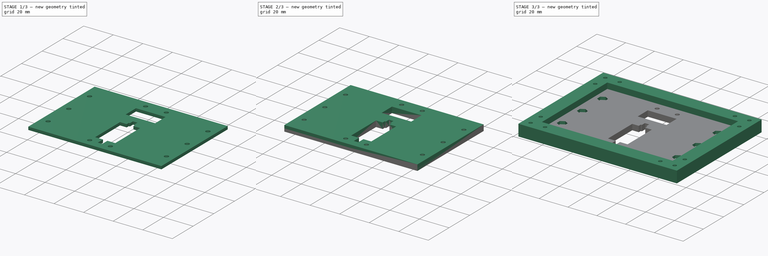
[diagram: build sequence overview — one tinted view per stage of 3, left to right]
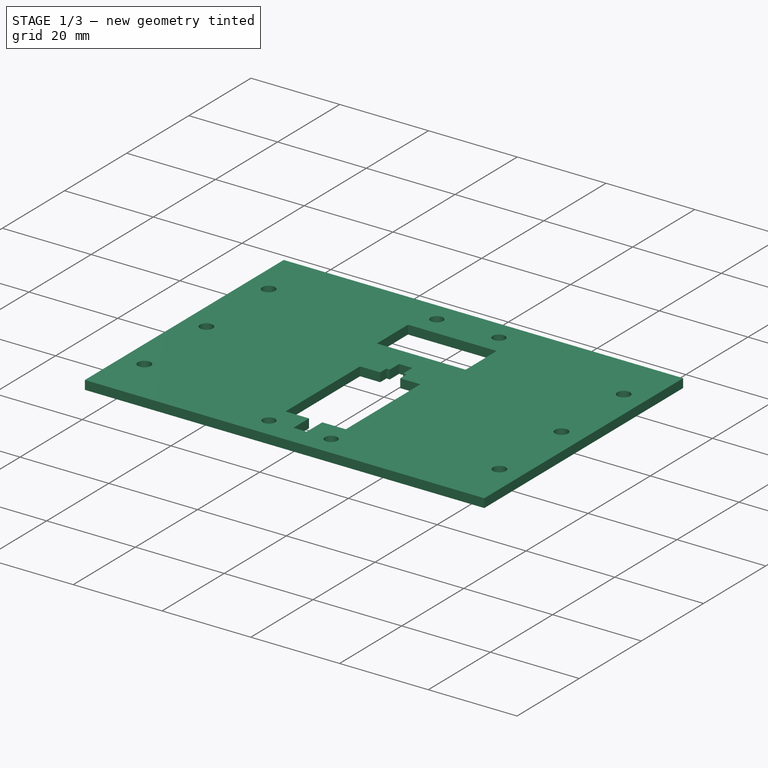
[diagram: stage 1 of 3 — iso view after this stage's code; geometry added in this stage tinted green]
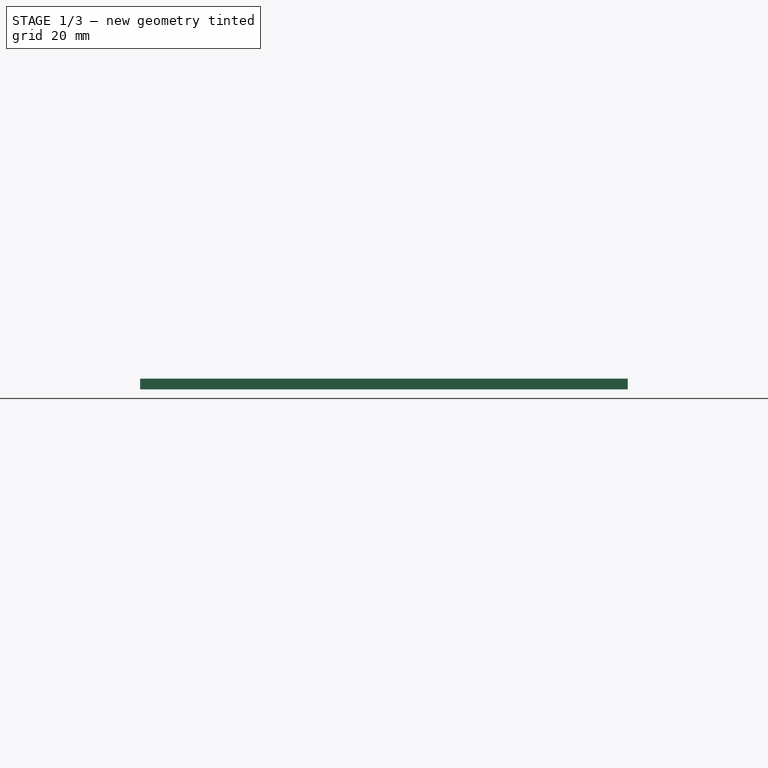
[diagram: stage 1 of 3 — front view after this stage's code; geometry added in this stage tinted green]
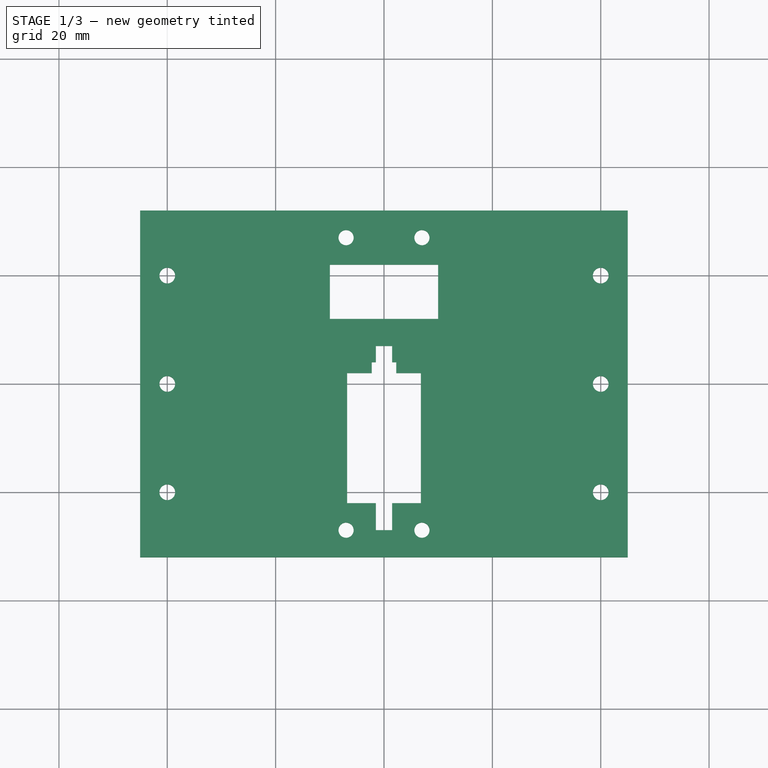
[diagram: stage 1 of 3 — top view after this stage's code; geometry added in this stage tinted green]
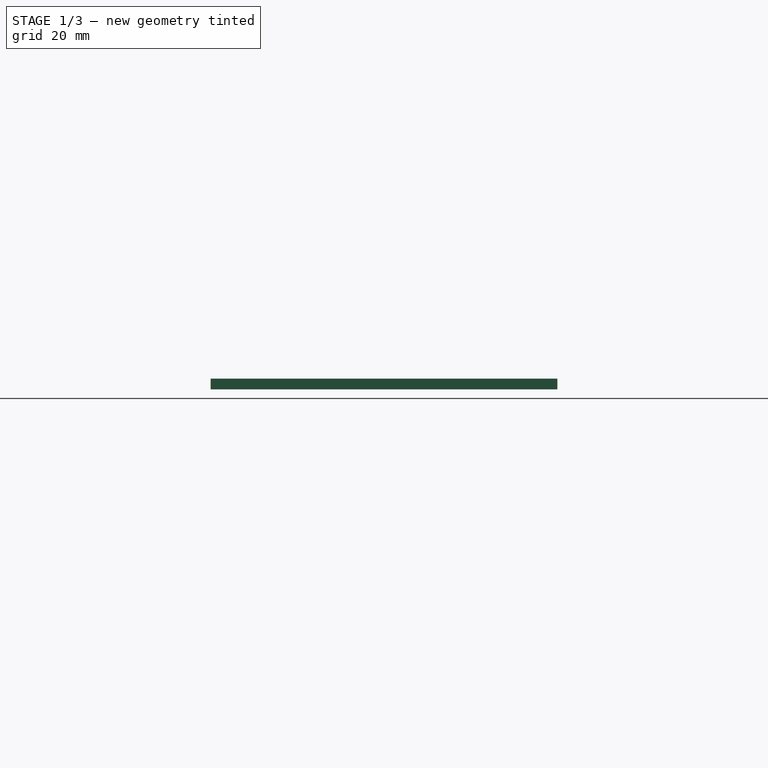
[diagram: stage 1 of 3 — right view after this stage's code; geometry added in this stage tinted green]
FCSTD DOCUMENT  (FreeCAD 0.21R33771 (Git))
Label: attachment_mounting_plate
License: All rights reserved
LicenseURL: http://en.wikipedia.org/wiki/All_rights_reserved
objects: Sketcher::SketchObject×7, PartDesign::Pad×3, PartDesign::Pocket×3, PartDesign::Plane×2, PartDesign::Body×2, App::Part×2, Spreadsheet::Sheet×1, PartDesign::Hole×1, App::DocumentObjectGroupPython×1, PartDesign::Chamfer×1
note: 27 computed .brp shape members not serialized (recipe doc carries the construction recipe); baked Part::Feature solids carry a one-line shape summary decoded from their .brp

FEATURE [Sketcher::SketchObject] Sketch003
  FullyConstrained = true
  MapMode = 5
  Support = -> [XY_Plane004]
  expr: Constraints[20] = Spreadsheet.servo_depth
  expr: Constraints[21] = Spreadsheet.servo_width
  expr: Constraints[23] = Spreadsheet.cable_port_width
  expr: Constraints[25] = Spreadsheet.cable_to_servo_length
  expr: Constraints[37] = Spreadsheet.side_bolt_to_centre
  expr: Constraints[38] = Spreadsheet.side_bolt_distance
  expr: Constraints[39] = Spreadsheet.bolt_diameter
  expr: Constraints[46] = Spreadsheet.cover_plate_hole_v_clearance
  expr: Constraints[47] = Spreadsheet.cover_plate_hole_width
  expr: Constraints[48] = Spreadsheet.cover_plate_hole_v_clearance
  expr: Constraints[49] = Spreadsheet.border_clearance
  expr: Constraints[50] = Spreadsheet.border_clearance
  expr: Constraints[52] = Spreadsheet.cable_port_height
  sketch-geometry (22):
    g0: LineSegment StartX=-45 StartY=32 StartZ=0 EndX=45 EndY=32 EndZ=0
    g1: LineSegment StartX=45 StartY=32 StartZ=0 EndX=45 EndY=-32 EndZ=0
    g2: LineSegment StartX=45 StartY=-32 StartZ=0 EndX=-45 EndY=-32 EndZ=0
    g3: LineSegment StartX=-45 StartY=-32 StartZ=0 EndX=-45 EndY=32 EndZ=0
    g4: LineSegment StartX=-10 StartY=22 StartZ=0 EndX=10 EndY=22 EndZ=0
    g5: LineSegment StartX=10 StartY=22 StartZ=0 EndX=10 EndY=12 EndZ=0
    g6: LineSegment StartX=10 StartY=12 StartZ=0 EndX=-10 EndY=12 EndZ=0
    g7: LineSegment StartX=-10 StartY=12 StartZ=0 EndX=-10 EndY=22 EndZ=0
    g8: LineSegment StartX=-6.8 StartY=2 StartZ=0 EndX=6.8 EndY=2 EndZ=0
    g9: LineSegment StartX=6.8 StartY=2 StartZ=0 EndX=6.8 EndY=-22 EndZ=0
    g10: LineSegment StartX=-6.8 StartY=-22 StartZ=0 EndX=-6.8 EndY=2 EndZ=0
    g11: Circle CenterX=-40 CenterY=20 CenterZ=0 NormalX=0 NormalY=0 NormalZ=1 AngleXU=0 Radius=1.4
    g12: Circle CenterX=-40 CenterY=0 CenterZ=0 NormalX=0 NormalY=0 NormalZ=1 AngleXU=0 Radius=1.4
    g13: Circle CenterX=-40 CenterY=-20 CenterZ=0 NormalX=0 NormalY=0 NormalZ=1 AngleXU=0 Radius=1.4
    g14: Circle CenterX=40 CenterY=20 CenterZ=0 NormalX=0 NormalY=0 NormalZ=1 AngleXU=0 Radius=1.4
    g15: Circle CenterX=40 CenterY=0 CenterZ=0 NormalX=0 NormalY=0 NormalZ=1 AngleXU=0 Radius=1.4
    g16: Circle CenterX=40 CenterY=-20 CenterZ=0 NormalX=0 NormalY=0 NormalZ=1 AngleXU=0 Radius=1.4
    g17: Circle CenterX=-7 CenterY=27 CenterZ=0 NormalX=0 NormalY=0 NormalZ=1 AngleXU=0 Radius=1.4
    g18: Circle CenterX=7 CenterY=27 CenterZ=0 NormalX=0 NormalY=0 NormalZ=1 AngleXU=0 Radius=1.4
    g19: Circle CenterX=7 CenterY=-27 CenterZ=0 NormalX=0 NormalY=0 NormalZ=1 AngleXU=0 Radius=1.4
    g20: Circle CenterX=-7 CenterY=-27 CenterZ=0 NormalX=0 NormalY=0 NormalZ=1 AngleXU=0 Radius=1.4
    g21: LineSegment StartX=6.8 StartY=-22 StartZ=0 EndX=-6.8 EndY=-22 EndZ=0
  constraints (56):
    c: Coincident(g0,g1)
    c: Coincident(g1,g2)
    c: Coincident(g2,g3)
    c: Coincident(g3,g0)
    c: Horizontal(g0)
    c: Horizontal(g2)
    c: Vertical(g1)
    c: Vertical(g3)
    c: Symmetric(g0,g1,g-1)
    c: Coincident(g4,g5)
    c: Coincident(g5,g6)
    c: Coincident(g6,g7)
    c: Coincident(g7,g4)
    c: Horizontal(g6)
    c: Vertical(g5)
    c: Vertical(g7)
    c: Coincident(g21,g10)
    c: Coincident(g10,g8)
    c: Vertical(g9)
    c: Vertical(g10)
    c: DistanceY(g10,g10) = 24
    c: DistanceX(g8,g9) = 13.6
    c: Symmetric(g8,g9,g-2)
    c: DistanceX(g4,g4) = 20
    c: Symmetric(g4,g4,g-2)
    c: DistanceY(g8,g6) = 10
    c: PointOnObject(g15,g-1)
    c: Symmetric(g12,g15,g-2)
    c: Equal(g14,g15)
    c: Equal(g15,g16)
    c: Equal(g16,g13)
    c: Equal(g13,g12)
    c: Equal(g12,g11)
    c: Symmetric(g11,g14,g-2)
    c: Symmetric(g16,g13,g-2)
    c: Symmetric(g11,g13,g-1)
    c: Vertical(g12,g11)
    c: DistanceX(g-1,g15) = 40
    c: DistanceY(g12,g11) = 20
    c: Diameter(g14) = 2.8
    c: Equal(g13,g20)
    c: Equal(g20,g19)
    c: Equal(g19,g18)
    c: Equal(g18,g17)
    c: Symmetric(g17,g18,g-2)
    c: Symmetric(g19,g20,g-2)
    c: DistanceY(g20,g21) = 5
    c: DistanceX(g17,g18) = 14
    c: DistanceY(g4,g17) = 5
    c: DistanceX(g2,g13) = 5
    c: DistanceY(g2,g20) = 5
    c: Symmetric(g20,g17,g-1)
    c: DistanceY(g7,g7) = 10
    c: Coincident(g8,g9)
    c: Coincident(g21,g9)
    c: Horizontal(g21)
FEATURE [PartDesign::Pad] Pad001
  Direction = (0,0,1)
  Length = 2
  Length2 = 10
  Profile = -> Sketch003
  ReferenceAxis = -> Sketch003 [N_Axis]
  Type = 0
  expr: Length = Spreadsheet.plate_thickness
FEATURE [PartDesign::Plane] DatumPlane001
  Length = 105.179
  MapMode = 5
  Placement = pos=(0,0,2) rot=(0,0,1;0rad)
  ResizeMode = 0
  Support = -> [Pad001]
  Width = 79.1789
FEATURE [Sketcher::SketchObject] Sketch004
  FullyConstrained = false
  MapMode = 5
  Placement = pos=(0,0,2) rot=(0,0,1;0rad)
  Support = -> [DatumPlane001]
  sketch-geometry (6):
    g0: Circle CenterX=40 CenterY=20 CenterZ=0 NormalX=0 NormalY=0 NormalZ=1 AngleXU=0 Radius=1.4
    g1: Circle CenterX=40 CenterY=-20 CenterZ=0 NormalX=0 NormalY=0 NormalZ=1 AngleXU=0 Radius=1.4
    g2: Circle CenterX=-40 CenterY=0 CenterZ=0 NormalX=0 NormalY=0 NormalZ=1 AngleXU=0 Radius=1.4
    g3: Circle CenterX=40 CenterY=0 CenterZ=0 NormalX=0 NormalY=0 NormalZ=1 AngleXU=0 Radius=1.4
    g4: Circle CenterX=-40 CenterY=20 CenterZ=0 NormalX=0 NormalY=0 NormalZ=1 AngleXU=0 Radius=1.4
    g5: Circle CenterX=-40 CenterY=-20 CenterZ=0 NormalX=0 NormalY=0 NormalZ=1 AngleXU=0 Radius=1.4
FEATURE [PartDesign::Hole] Hole
  BaseFeature = -> Pad001
  CustomThreadClearance = 0
  Depth = 25
  DepthType = 0
  Diameter = 2.9
  DrillForDepth = false
  DrillPoint = 1
  DrillPointAngle = 118
  HoleCutCountersinkAngle = 90
  HoleCutCustomValues = false
  HoleCutDepth = 0
  HoleCutDiameter = 6.1
  HoleCutType = 0
  ModelThread = false
  Profile = -> Sketch004
  Tapered = false
  TaperedAngle = 90
  ThreadClass = 0
  ThreadDepth = 25
  ThreadDepthType = 0
  ThreadDirection = 0
  ThreadFit = 0
  ThreadSize = 8
  ThreadType = 1
  Threaded = false
  UseCustomThreadClearance = false
FEATURE [PartDesign::Body] Body  label="MountingPlateBody"
  Group = -> [Sketch,Pad,DatumPlane,Sketch002,Pocket,Sketch005,Pad002,Sketch006,Pocket001]
  Origin = -> Origin001
  Tip = -> Pocket001
FEATURE [App::Part] Part  label="MountingPlatePart"
  Group = -> [Body]
  Origin = -> Origin
FEATURE [Sketcher::SketchObject] Sketch007
  ExternalGeometry = -> [Hole]
  FullyConstrained = true
  MapMode = 5
  Placement = pos=(0,0,2) rot=(0,0,1;0rad)
  Support = -> [Hole]
  expr: Constraints[26] = Spreadsheet.servo_motor_cable_width
  expr: Constraints[27] = Spreadsheet.servo_motor_cable_thickness
  expr: Constraints[30] = Spreadsheet.servo_tab_width
  expr: Constraints[32] = Spreadsheet.servo_tab_depth
  sketch-geometry (13):
    g0: LineSegment StartX=-6.8 StartY=-10 StartZ=0 EndX=6.8 EndY=-10 EndZ=0
    g1: LineSegment StartX=1.5 StartY=4 StartZ=0 EndX=1.5 EndY=7 EndZ=0
    g2: LineSegment StartX=1.5 StartY=7 StartZ=0 EndX=-1.5 EndY=7 EndZ=0
    g3: LineSegment StartX=-1.5 StartY=7 StartZ=0 EndX=-1.5 EndY=4 EndZ=0
    g4: LineSegment StartX=-1.5 StartY=-22 StartZ=0 EndX=1.5 EndY=-22 EndZ=0
    g5: LineSegment StartX=1.5 StartY=-22 StartZ=0 EndX=1.5 EndY=-27 EndZ=0
    g6: LineSegment StartX=1.5 StartY=-27 StartZ=0 EndX=-1.5 EndY=-27 EndZ=0
    g7: LineSegment StartX=-1.5 StartY=-27 StartZ=0 EndX=-1.5 EndY=-22 EndZ=0
    g8: LineSegment StartX=2.25 StartY=2 StartZ=0 EndX=2.25 EndY=4 EndZ=0
    g9: LineSegment StartX=2.25 StartY=4 StartZ=0 EndX=1.5 EndY=4 EndZ=0
    g10: LineSegment StartX=-2.25 StartY=4 StartZ=0 EndX=-2.25 EndY=2 EndZ=0
    g11: LineSegment StartX=-1.5 StartY=4 StartZ=0 EndX=-2.25 EndY=4 EndZ=0
    g12: LineSegment StartX=-2.25 StartY=2 StartZ=0 EndX=2.25 EndY=2 EndZ=0
  constraints (34):
    c: PointOnObject(g0,g-3)
    c: Symmetric(g0,g0,g-2)
    c: Symmetric(g-5,g-6,g0)
    c: Coincident(g1,g2)
    c: Coincident(g2,g3)
    c: Vertical(g1)
    c: Coincident(g4,g5)
    c: Coincident(g5,g6)
    c: Coincident(g6,g7)
    c: Coincident(g7,g4)
    c: Horizontal(g4)
    c: Vertical(g5)
    c: Vertical(g7)
    c: PointOnObject(g4,g-5)
    c: Coincident(g8,g9)
    c: Coincident(g11,g10)
    c: Horizontal(g9)
    c: Vertical(g8)
    c: Vertical(g10)
    c: PointOnObject(g8,g-6)
    c: Symmetric(g1,g2,g-2)
    c: Coincident(g3,g11)
    c: Coincident(g1,g9)
    c: Coincident(g12,g10)
    c: Coincident(g12,g8)
    c: Horizontal(g12)
    c: DistanceX(g12,g12) = 4.5
    c: DistanceY(g8,g8) = 2
    c: Symmetric(g3,g1,g-2)
    c: Symmetric(g10,g8,g-2)
    c: DistanceX(g2,g2) = 3
    c: Symmetric(g6,g2,g0)
    c: DistanceY(g8,g1) = 5
    c: Symmetric(g5,g6,g-2)
FEATURE [PartDesign::Pocket] Pocket002
  BaseFeature = -> Hole
  Direction = (0,0,-1)
  Length = 5
  Length2 = 5
  Profile = -> Sketch007
  ReferenceAxis = -> Sketch007 [N_Axis]
  Type = 1
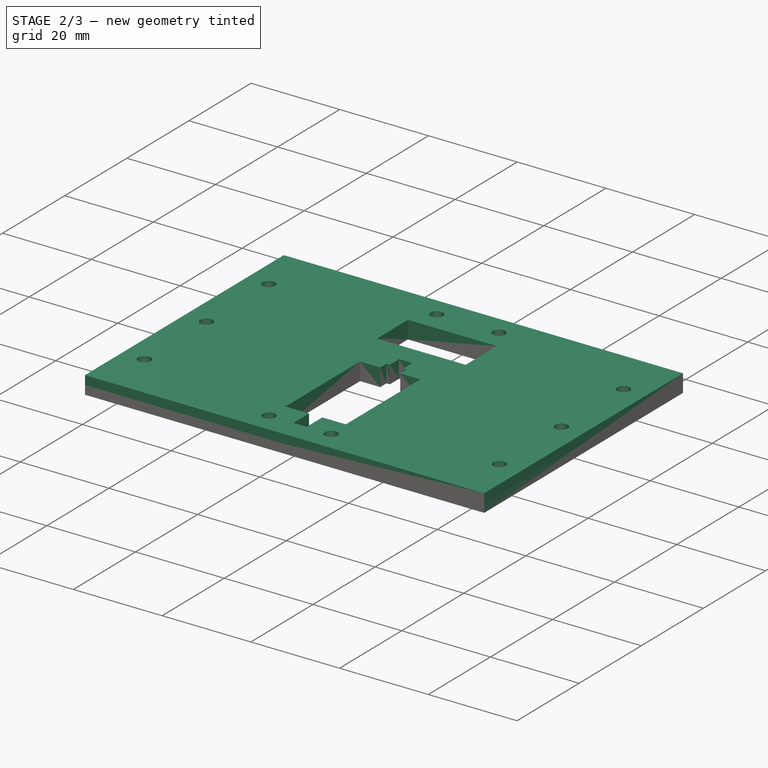
[diagram: stage 2 of 3 — iso view after this stage's code; geometry added in this stage tinted green]
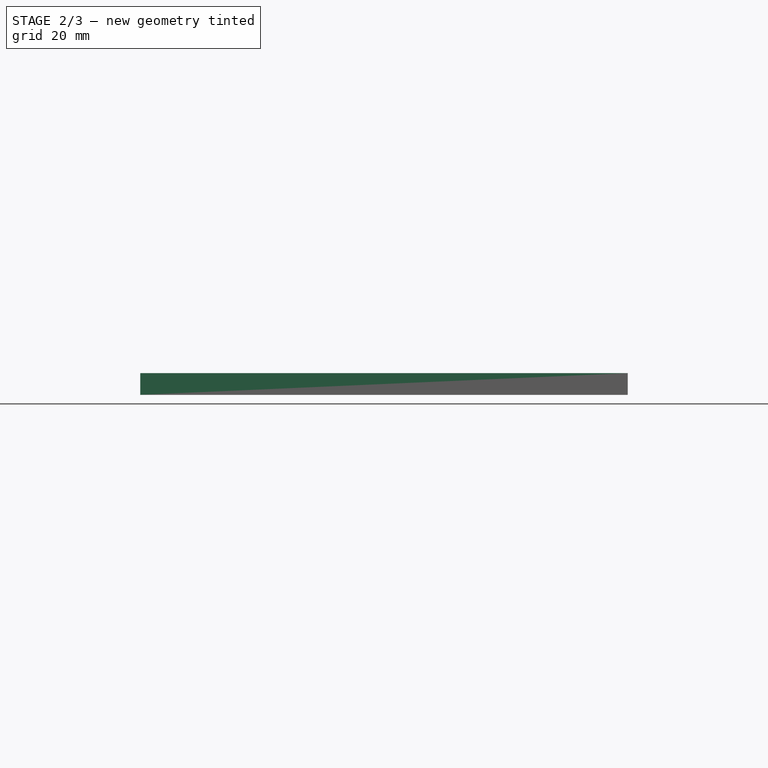
[diagram: stage 2 of 3 — front view after this stage's code; geometry added in this stage tinted green]
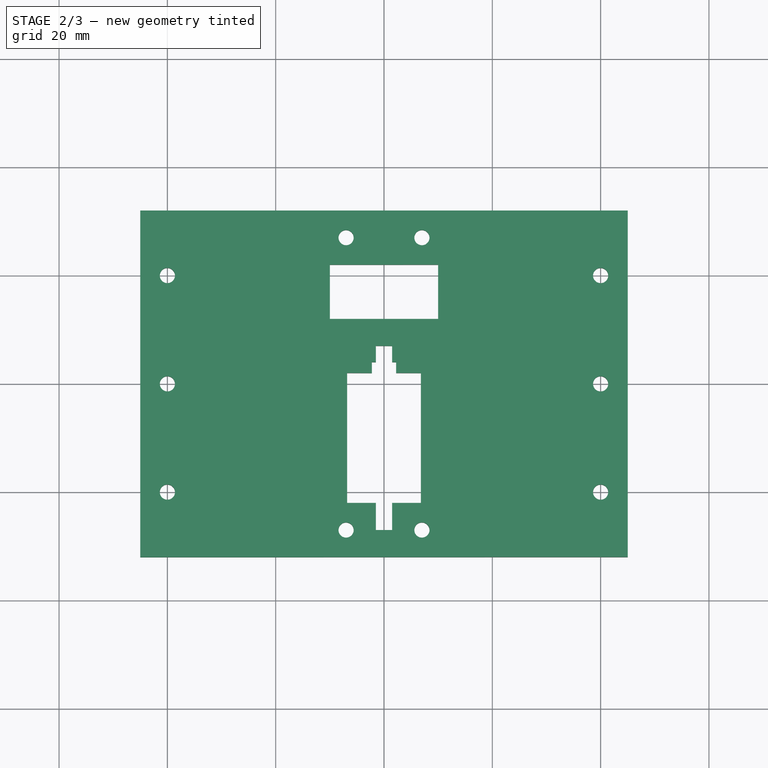
[diagram: stage 2 of 3 — top view after this stage's code; geometry added in this stage tinted green]
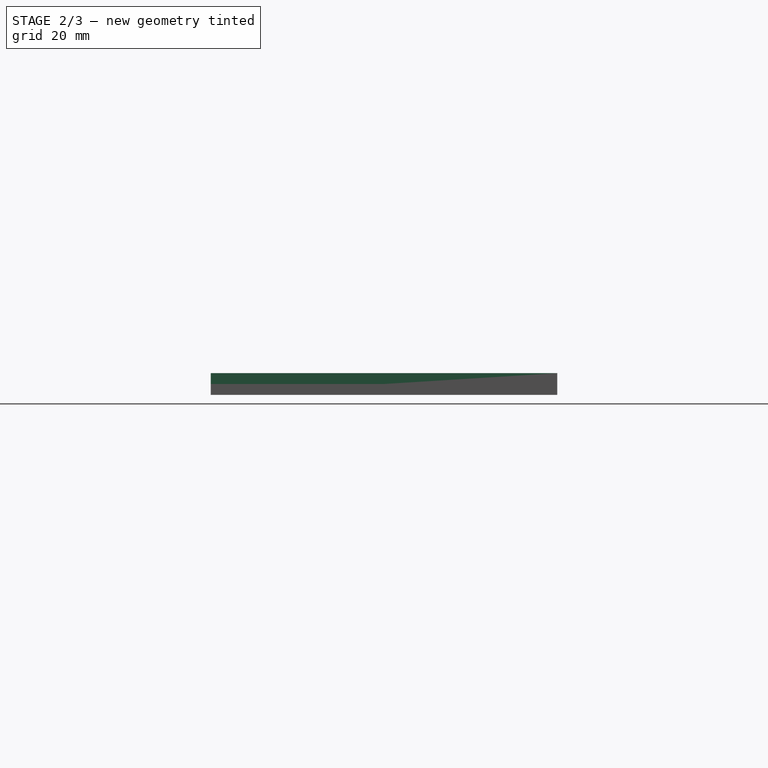
[diagram: stage 2 of 3 — right view after this stage's code; geometry added in this stage tinted green]
FEATURE [Spreadsheet::Sheet] Spreadsheet
  cells = A1='Dimensions; D1='Printer Tolerances; G1='Servo Motor; H1='SG90; J1='Cover Plate Holes; M1='M2.5 Nut Thickness; P1='Mounting Tabs; A2='bolt_diameter; B2(bolt_diameter)==2.8 mm; D2='printer_horizontal; E2(printer_horizontal)==0.4 mm; G2='servo_depth; H2(servo_depth)==24 mm; J2='cover_plate_hole_width; K2(cover_plate_hole_width)==14 mm; M2='m25_nut_thickness; N2(m25_nut_thickness)==2 mm; P2='tab_width; Q2(tab_width)==10 mm; A3='rpi_camera_width; B3(rpi_camera_width)==16 mm; D3='printer_vertical; E3(printer_vertical)==0.1 mm; G3='servo_width; H3(servo_width)==13.6 mm; J3='cover_plate_hole_v_clearance; K3(cover_plate_hole_v_clearance)==5 mm; M3='m25_nut_width; N3(m25_nut_width)==5.4 mm; P3='tab_hole_size; Q3(tab_hole_size)==2.5 mm; A4='cable_port_width; B4(cable_port_width)==20 mm; G4='servo_tab_depth; H4(servo_tab_depth)==5 mm; M4='m25_hole_depth; N4(m25_hole_depth)==10 mm; P4='tab_hole_dist; Q4(tab_hole_dist)==10 mm; A5='cable_port_height; B5(cable_port_height)==10 mm; G5='servo_motor_cable_width; H5(servo_motor_cable_width)==4.5 mm; P5='tab_thickness; Q5(tab_thickness)==mounting_plate_thickness + plate_thickness * 2; A6='side_bolt_to_centre; B6(side_bolt_to_centre)==40 mm; G6='servo_tab_width; H6(servo_tab_width)==3 mm; A7='side_bolt_distance; B7(side_bolt_distance)==20 mm; G7='cable_to_servo_length; H7(cable_to_servo_length)==10 mm; A8='plate_thickness; B8(plate_thickness)==2 mm; G8='servo_motor_cable_thickness; H8(servo_motor_cable_thickness)==2 mm; A9='border_clearance; B9(border_clearance)==5 mm; G9='servo_threaded_size; H9(servo_threaded_size)==1.8 mm; A10='mounting_plate_thickness; B10(mounting_plate_thickness)==plate_thickness + m25_nut_thickness; G10='servo_hole_distance; H10(servo_hole_distance)==29 mm; A14='Big Ole Yellow Dimensions; D14='Derived; A15='length_between_hole_groups; B15(length_between_hole_groups)==60 mm; D15='plate_width; E15(plate_width)==(side_bolt_to_centre + border_clearance) * 2; A16='width_between_hole_groups; B16(width_between_hole_groups)==90 mm; D16='plate_height; E16(plate_height)==64 mm; F16='TODO: Should be driven; A17='outer_hole_group_distance; B17(outer_hole_group_distance)==30 mm; A18='inner_hole_group_distance; B18(inner_hole_group_distance)==16 mm; A19='inner_outer_width; B19(inner_outer_width)==5 mm; A20='hole_group_hole_size; B20(hole_group_hole_size)==3 mm; A21='leg_clearance_height; B21(leg_clearance_height)==80 mm; A22='outer_hole_w_distance; B22(outer_hole_w_distance)==24 mm; A23='foot_mounting_hole_clearance; B23(foot_mounting_hole_clearance)==5 mm; A24='self_centering_tab_thickness; B24(self_centering_tab_thickness)==3 mm; A25='tool_vertical_clearance; B25(tool_vertical_clearance)==40 mm
FEATURE [Sketcher::SketchObject] Sketch
  FullyConstrained = true
  MapMode = 5
  Support = -> [XY_Plane001]
  expr: Constraints[23] = Spreadsheet.servo_depth
  expr: Constraints[24] = Spreadsheet.servo_width
  expr: Constraints[26] = Spreadsheet.cable_port_width
  expr: Constraints[28] = Spreadsheet.cable_to_servo_length
  expr: Constraints[40] = Spreadsheet.side_bolt_to_centre
  expr: Constraints[41] = Spreadsheet.side_bolt_distance
  expr: Constraints[42] = Spreadsheet.bolt_diameter
  expr: Constraints[54] = Spreadsheet.servo_tab_width
  expr: Constraints[61] = Spreadsheet.cover_plate_hole_v_clearance
  expr: Constraints[62] = Spreadsheet.cover_plate_hole_width
  expr: Constraints[63] = Spreadsheet.cover_plate_hole_v_clearance
  expr: Constraints[64] = Spreadsheet.border_clearance
  expr: Constraints[65] = Spreadsheet.border_clearance
  expr: Constraints[67] = Spreadsheet.cable_port_height
  expr: Constraints[77] = Spreadsheet.servo_motor_cable_width
  expr: Constraints[78] = Spreadsheet.servo_motor_cable_thickness
  expr: Constraints[85] = Spreadsheet.servo_tab_depth
  expr: Constraints[86] = Spreadsheet.servo_tab_depth
  sketch-geometry (34):
    g0: LineSegment StartX=-45 StartY=32 StartZ=0 EndX=45 EndY=32 EndZ=0
    g1: LineSegment StartX=45 StartY=32 StartZ=0 EndX=45 EndY=-32 EndZ=0
    g2: LineSegment StartX=45 StartY=-32 StartZ=0 EndX=-45 EndY=-32 EndZ=0
    g3: LineSegment StartX=-45 StartY=-32 StartZ=0 EndX=-45 EndY=32 EndZ=0
    g4: LineSegment StartX=-10 StartY=22 StartZ=0 EndX=10 EndY=22 EndZ=0
    g5: LineSegment StartX=10 StartY=22 StartZ=0 EndX=10 EndY=12 EndZ=0
    g6: LineSegment StartX=10 StartY=12 StartZ=0 EndX=-10 EndY=12 EndZ=0
    g7: LineSegment StartX=-10 StartY=12 StartZ=0 EndX=-10 EndY=22 EndZ=0
    g8: LineSegment StartX=-6.8 StartY=2 StartZ=0 EndX=-2.25 EndY=2 EndZ=0
    g9: LineSegment StartX=6.8 StartY=2 StartZ=0 EndX=6.8 EndY=-22 EndZ=0
    g10: LineSegment StartX=6.8 StartY=-22 StartZ=0 EndX=1.5 EndY=-22 EndZ=0
    g11: LineSegment StartX=-6.8 StartY=-22 StartZ=0 EndX=-6.8 EndY=2 EndZ=0
    g12: Circle CenterX=-40 CenterY=20 CenterZ=0 NormalX=0 NormalY=0 NormalZ=1 AngleXU=0 Radius=1.4
    g13: Circle CenterX=-40 CenterY=0 CenterZ=0 NormalX=0 NormalY=0 NormalZ=1 AngleXU=0 Radius=1.4
    g14: Circle CenterX=-40 CenterY=-20 CenterZ=0 NormalX=0 NormalY=0 NormalZ=1 AngleXU=0 Radius=1.4
    g15: Circle CenterX=40 CenterY=20 CenterZ=0 NormalX=0 NormalY=0 NormalZ=1 AngleXU=0 Radius=1.4
    g16: Circle CenterX=40 CenterY=0 CenterZ=0 NormalX=0 NormalY=0 NormalZ=1 AngleXU=0 Radius=1.4
    g17: Circle CenterX=40 CenterY=-20 CenterZ=0 NormalX=0 NormalY=0 NormalZ=1 AngleXU=0 Radius=1.4
    g18: LineSegment StartX=-1.5 StartY=7 StartZ=0 EndX=1.5 EndY=7 EndZ=0
    g19: LineSegment StartX=1.5 StartY=7 StartZ=0 EndX=1.5 EndY=4 EndZ=0
    g20: LineSegment StartX=-1.5 StartY=4 StartZ=0 EndX=-1.5 EndY=7 EndZ=0
    g21: LineSegment StartX=1.5 StartY=-22 StartZ=0 EndX=1.5 EndY=-27 EndZ=0
    g22: LineSegment StartX=1.5 StartY=-27 StartZ=0 EndX=-1.5 EndY=-27 EndZ=0
    g23: LineSegment StartX=-1.5 StartY=-27 StartZ=0 EndX=-1.5 EndY=-22 EndZ=0
    g24: Circle CenterX=-7 CenterY=27 CenterZ=0 NormalX=0 NormalY=0 NormalZ=1 AngleXU=0 Radius=1.4
    g25: Circle CenterX=7 CenterY=27 CenterZ=0 NormalX=0 NormalY=0 NormalZ=1 AngleXU=0 Radius=1.4
    g26: Circle CenterX=7 CenterY=-27 CenterZ=0 NormalX=0 NormalY=0 NormalZ=1 AngleXU=0 Radius=1.4
    g27: Circle CenterX=-7 CenterY=-27 CenterZ=0 NormalX=0 NormalY=0 NormalZ=1 AngleXU=0 Radius=1.4
    g28: LineSegment StartX=-1.5 StartY=-22 StartZ=0 EndX=-6.8 EndY=-22 EndZ=0
    g29: LineSegment StartX=2.25 StartY=2 StartZ=0 EndX=6.8 EndY=2 EndZ=0
    g30: LineSegment StartX=-2.25 StartY=4 StartZ=0 EndX=-1.5 EndY=4 EndZ=0
    g31: LineSegment StartX=2.25 StartY=4 StartZ=0 EndX=2.25 EndY=2 EndZ=0
    g32: LineSegment StartX=-2.25 StartY=2 StartZ=0 EndX=-2.25 EndY=4 EndZ=0
    g33: LineSegment StartX=1.5 StartY=4 StartZ=0 EndX=2.25 EndY=4 EndZ=0
  constraints (87):
    c: Coincident(g0,g1)
    c: Coincident(g1,g2)
    c: Coincident(g2,g3)
    c: Coincident(g3,g0)
    c: Horizontal(g0)
    c: Horizontal(g2)
    c: Vertical(g1)
    c: Vertical(g3)
    c: Symmetric(g0,g1,g-1)
    c: Coincident(g4,g5)
    c: Coincident(g5,g6)
    c: Coincident(g6,g7)
    c: Coincident(g7,g4)
    c: Horizontal(g6)
    c: Vertical(g5)
    c: Vertical(g7)
    c: Coincident(g29,g9)
    c: Coincident(g9,g10)
    c: Coincident(g28,g11)
    c: Coincident(g11,g8)
    c: Horizontal(g10)
    c: Vertical(g9)
    c: Vertical(g11)
    c: DistanceY(g11,g11) = 24
    c: DistanceX(g8,g29) = 13.6
    c: Symmetric(g8,g29,g-2)
    c: DistanceX(g4,g4) = 20
    c: Symmetric(g4,g4,g-2)
    c: DistanceY(g8,g6) = 10
    c: PointOnObject(g16,g-1)
    c: Symmetric(g13,g16,g-2)
    c: Equal(g15,g16)
    c: Equal(g16,g17)
    c: Equal(g17,g14)
    c: Equal(g14,g13)
    c: Equal(g13,g12)
    c: Symmetric(g12,g15,g-2)
    c: Symmetric(g17,g14,g-2)
    c: Symmetric(g12,g14,g-1)
    c: Vertical(g13,g12)
    c: DistanceX(g-1,g16) = 40
    c: DistanceY(g13,g12) = 20
    c: Diameter(g15) = 2.8
    c: Coincident(g18,g19)
    c: Coincident(g20,g18)
    c: Horizontal(g18)
    c: Vertical(g19)
    c: Vertical(g20)
    c: Coincident(g21,g22)
    c: Coincident(g22,g23)
    c: Vertical(g21)
    c: Vertical(g23)
    c: Equal(g22,g18)
    c: Symmetric(g22,g21,g-2)
    c: DistanceX(g18,g18) = 3
    c: Equal(g14,g27)
    c: Equal(g27,g26)
    c: Equal(g26,g25)
    c: Equal(g25,g24)
    c: Symmetric(g24,g25,g-2)
    c: Symmetric(g26,g27,g-2)
    c: DistanceY(g27,g28) = 5
    c: DistanceX(g24,g25) = 14
    c: DistanceY(g4,g24) = 5
    c: DistanceX(g2,g14) = 5
    c: DistanceY(g2,g27) = 5
    c: Symmetric(g27,g24,g-1)
    c: DistanceY(g7,g7) = 10
    c: Tangent(g28,g10)
    c: Tangent(g8,g29)
    c: Coincident(g23,g28)
    c: Coincident(g10,g21)
    c: Coincident(g33,g31)
    c: Coincident(g32,g30)
    c: Vertical(g31)
    c: Vertical(g32)
    c: Symmetric(g30,g33,g-2)
    c: DistanceX(g30,g33) = 4.5
    c: DistanceY(g32,g32) = 2
    c: Coincident(g29,g31)
    c: Coincident(g30,g20)
    c: Coincident(g33,g19)
    c: Tangent(g30,g33)
    c: Coincident(g32,g8)
    c: Symmetric(g20,g19,g-2)
    c: DistanceY(g8,g18) = 5
    c: DistanceY(g23,g23) = 5
FEATURE [PartDesign::Pad] Pad
  Direction = (0,0,1)
  Length = 4
  Length2 = 10
  Profile = -> Sketch
  ReferenceAxis = -> Sketch [N_Axis]
  Type = 0
  expr: Length = Spreadsheet.mounting_plate_thickness
FEATURE [PartDesign::Chamfer] Chamfer
  Angle = 45
  Base = -> Pocket002 [Edge45,Edge44,Edge71,Edge65]
  BaseFeature = -> Pocket002
  ChamferType = 1
  FlipDirection = false
  Size = 2
  Size2 = 0.8
  SupportTransform = false
  UseAllEdges = false
FEATURE [PartDesign::Body] Body001  label="CoverPlateBody"
  Group = -> [Sketch003,Pad001,DatumPlane001,Sketch004,Hole,Sketch007,Pocket002,Chamfer]
  Origin = -> Origin003
  Placement = pos=(0,0,4) rot=(0,0,1;0rad)
  Tip = -> Chamfer
  expr: .Placement.Base.z = Spreadsheet.plate_thickness * 2
FEATURE [App::Part] Part001  label="CoverPlatePart"
  Group = -> [Body001]
  Origin = -> Origin002
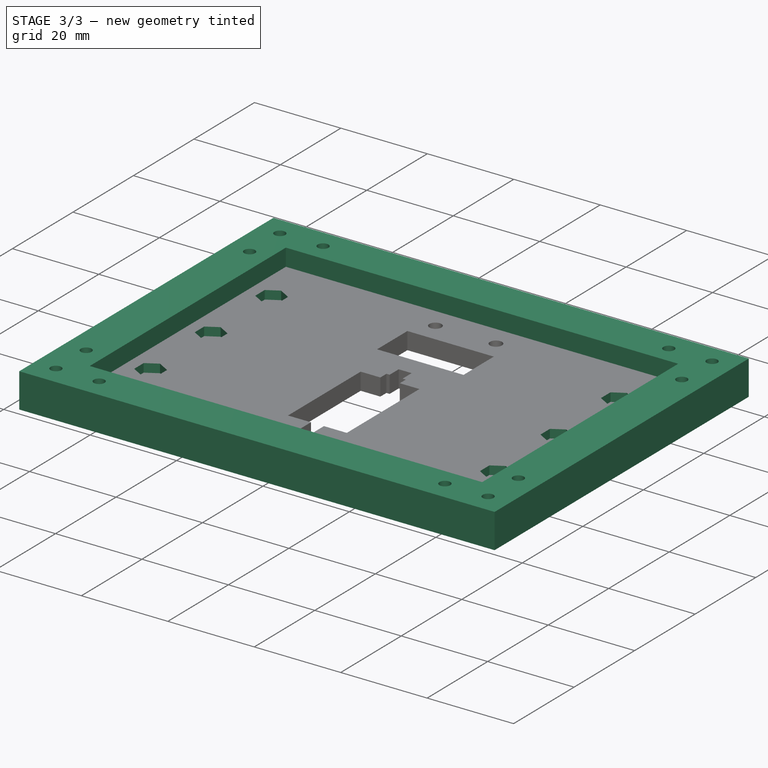
[diagram: stage 3 of 3 — iso view after this stage's code; geometry added in this stage tinted green]
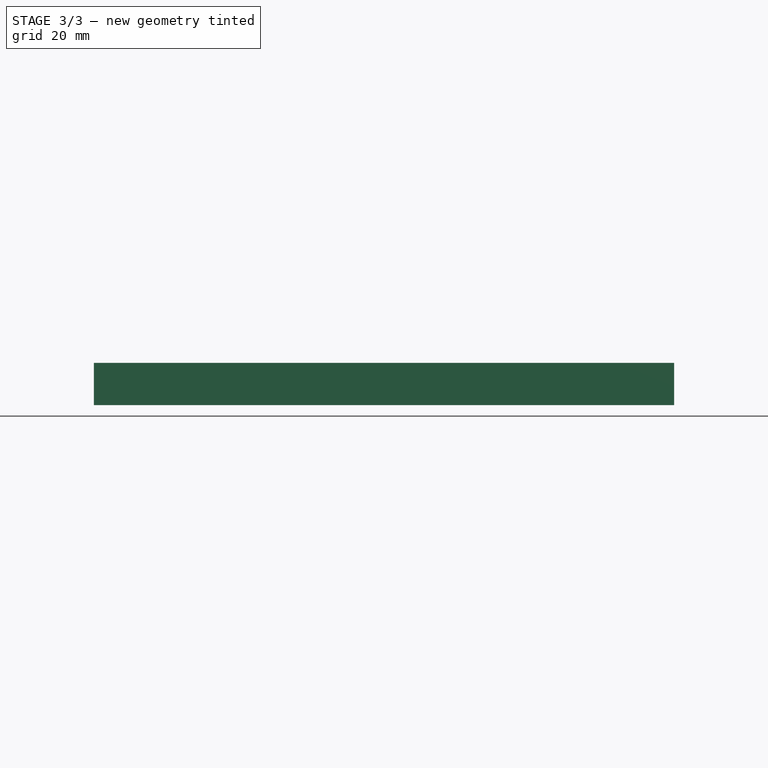
[diagram: stage 3 of 3 — front view after this stage's code; geometry added in this stage tinted green]
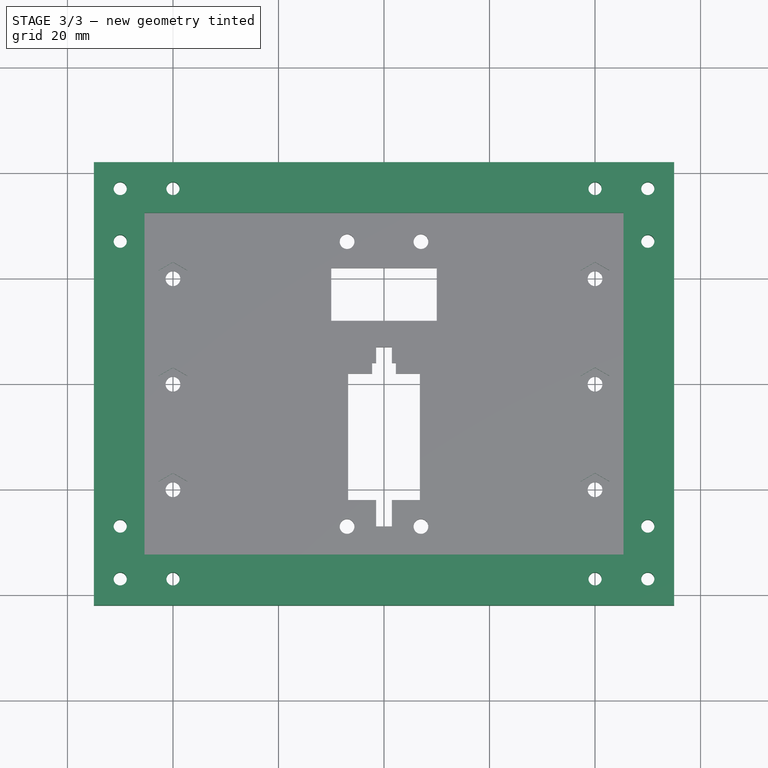
[diagram: stage 3 of 3 — top view after this stage's code; geometry added in this stage tinted green]
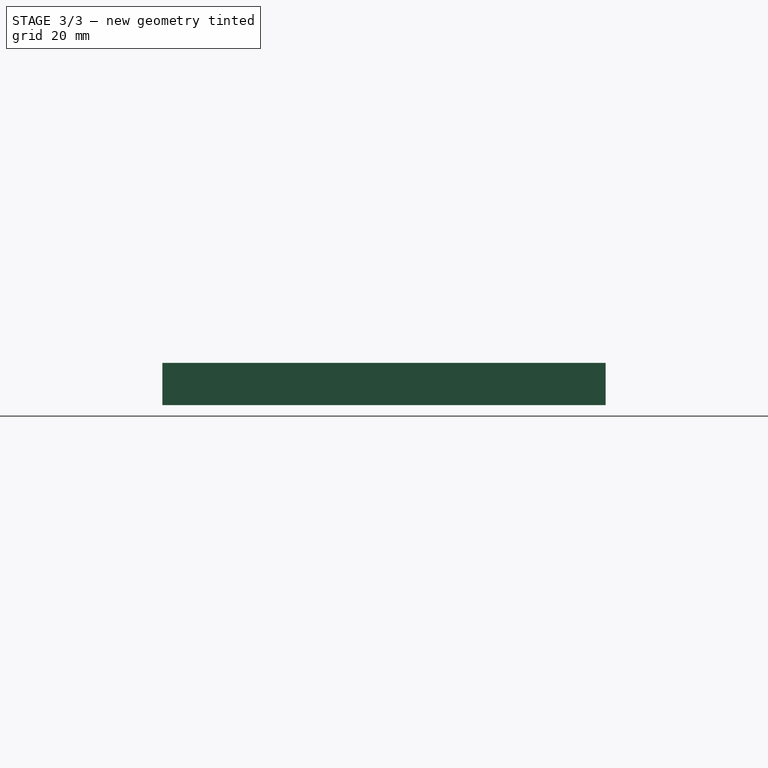
[diagram: stage 3 of 3 — right view after this stage's code; geometry added in this stage tinted green]
FEATURE [PartDesign::Plane] DatumPlane
  Length = 60
  MapMode = 5
  Placement = pos=(0,0,4) rot=(0,0,1;0rad)
  ResizeMode = 0
  Support = -> [Pad]
  Width = 60
FEATURE [Sketcher::SketchObject] Sketch002
  ExternalGeometry = -> [Pad]
  FullyConstrained = true
  MapMode = 5
  Placement = pos=(0,0,4) rot=(0,0,1;0rad)
  Support = -> [DatumPlane]
  expr: Constraints[73] = Spreadsheet.m25_nut_width
  sketch-geometry (42):
    g0: LineSegment StartX=42.7 StartY=21.5588 StartZ=0 EndX=40 EndY=23.1177 EndZ=0
    g1: LineSegment StartX=40 StartY=23.1177 StartZ=0 EndX=37.3 EndY=21.5588 EndZ=0
    g2: LineSegment StartX=37.3 StartY=21.5588 StartZ=0 EndX=37.3 EndY=18.4412 EndZ=0
    g3: LineSegment StartX=37.3 StartY=18.4412 StartZ=0 EndX=40 EndY=16.8823 EndZ=0
    g4: LineSegment StartX=40 StartY=16.8823 StartZ=0 EndX=42.7 EndY=18.4412 EndZ=0
    g5: LineSegment StartX=42.7 StartY=18.4412 StartZ=0 EndX=42.7 EndY=21.5588 EndZ=0
    g6: Circle CenterX=40 CenterY=20 CenterZ=0 NormalX=0 NormalY=0 NormalZ=1 AngleXU=0 Radius=3.11769
    g7: LineSegment StartX=-40 StartY=3.11769 StartZ=0 EndX=-42.7 EndY=1.55885 EndZ=0
    g8: LineSegment StartX=-42.7 StartY=1.55885 StartZ=0 EndX=-42.7 EndY=-1.55885 EndZ=0
    g9: LineSegment StartX=-42.7 StartY=-1.55885 StartZ=0 EndX=-40 EndY=-3.11769 EndZ=0
    g10: LineSegment StartX=-40 StartY=-3.11769 StartZ=0 EndX=-37.3 EndY=-1.55885 EndZ=0
    g11: LineSegment StartX=-37.3 StartY=-1.55885 StartZ=0 EndX=-37.3 EndY=1.55885 EndZ=0
    g12: LineSegment StartX=-37.3 StartY=1.55885 StartZ=0 EndX=-40 EndY=3.11769 EndZ=0
    g13: Circle CenterX=-40 CenterY=2e-16 CenterZ=0 NormalX=0 NormalY=0 NormalZ=1 AngleXU=0 Radius=3.11769
    g14: LineSegment StartX=40 StartY=3.11769 StartZ=0 EndX=37.3 EndY=1.55885 EndZ=0
    g15: LineSegment StartX=37.3 StartY=1.55885 StartZ=0 EndX=37.3 EndY=-1.55885 EndZ=0
    g16: LineSegment StartX=37.3 StartY=-1.55885 StartZ=0 EndX=40 EndY=-3.11769 EndZ=0
    g17: LineSegment StartX=40 StartY=-3.11769 StartZ=0 EndX=42.7 EndY=-1.55885 EndZ=0
    g18: LineSegment StartX=42.7 StartY=-1.55885 StartZ=0 EndX=42.7 EndY=1.55885 EndZ=0
    g19: LineSegment StartX=42.7 StartY=1.55885 StartZ=0 EndX=40 EndY=3.11769 EndZ=0
    g20: Circle CenterX=40 CenterY=3e-16 CenterZ=0 NormalX=0 NormalY=0 NormalZ=1 AngleXU=0 Radius=3.11769
    g21: LineSegment StartX=40 StartY=-23.1177 StartZ=0 EndX=42.7 EndY=-21.5588 EndZ=0
    g22: LineSegment StartX=42.7 StartY=-21.5588 StartZ=0 EndX=42.7 EndY=-18.4412 EndZ=0
    g23: LineSegment StartX=42.7 StartY=-18.4412 StartZ=0 EndX=40 EndY=-16.8823 EndZ=0
    g24: LineSegment StartX=40 StartY=-16.8823 StartZ=0 EndX=37.3 EndY=-18.4412 EndZ=0
    g25: LineSegment StartX=37.3 StartY=-18.4412 StartZ=0 EndX=37.3 EndY=-21.5588 EndZ=0
    g26: LineSegment StartX=37.3 StartY=-21.5588 StartZ=0 EndX=40 EndY=-23.1177 EndZ=0
    g27: Circle CenterX=40 CenterY=-20 CenterZ=0 NormalX=0 NormalY=0 NormalZ=1 AngleXU=0 Radius=3.11769
    g28: LineSegment StartX=-37.3 StartY=18.4412 StartZ=0 EndX=-37.3 EndY=21.5588 EndZ=0
    g29: LineSegment StartX=-37.3 StartY=21.5588 StartZ=0 EndX=-40 EndY=23.1177 EndZ=0
    g30: LineSegment StartX=-40 StartY=23.1177 StartZ=0 EndX=-42.7 EndY=21.5588 EndZ=0
    g31: LineSegment StartX=-42.7 StartY=21.5588 StartZ=0 EndX=-42.7 EndY=18.4412 EndZ=0
    g32: LineSegment StartX=-42.7 StartY=18.4412 StartZ=0 EndX=-40 EndY=16.8823 EndZ=0
    g33: LineSegment StartX=-40 StartY=16.8823 StartZ=0 EndX=-37.3 EndY=18.4412 EndZ=0
    g34: Circle CenterX=-40 CenterY=20 CenterZ=0 NormalX=0 NormalY=0 NormalZ=1 AngleXU=0 Radius=3.11769
    g35: LineSegment StartX=-40 StartY=-23.1177 StartZ=0 EndX=-37.3 EndY=-21.5588 EndZ=0
    g36: LineSegment StartX=-37.3 StartY=-21.5588 StartZ=0 EndX=-37.3 EndY=-18.4412 EndZ=0
    g37: LineSegment StartX=-37.3 StartY=-18.4412 StartZ=0 EndX=-40 EndY=-16.8823 EndZ=0
    g38: LineSegment StartX=-40 StartY=-16.8823 StartZ=0 EndX=-42.7 EndY=-18.4412 EndZ=0
    g39: LineSegment StartX=-42.7 StartY=-18.4412 StartZ=0 EndX=-42.7 EndY=-21.5588 EndZ=0
    g40: LineSegment StartX=-42.7 StartY=-21.5588 StartZ=0 EndX=-40 EndY=-23.1177 EndZ=0
    g41: Circle CenterX=-40 CenterY=-20 CenterZ=0 NormalX=0 NormalY=0 NormalZ=1 AngleXU=0 Radius=3.11769
  constraints (96):
    c: Coincident(g0,g1)
    c: Coincident(g1,g2)
    c: Coincident(g2,g3)
    c: Coincident(g3,g4)
    c: Coincident(g4,g5)
    c: Coincident(g5,g0)
    c: Equal(g0, g1-g5) x5
    c: PointOnObject(g0,g6)
    c: PointOnObject(g1,g6)
    c: PointOnObject(g2,g6)
    c: PointOnObject(g3,g6)
    c: PointOnObject(g4,g6)
    c: PointOnObject(g5,g6)
    c: Coincident(g7,g8)
    c: Coincident(g8,g9)
    c: Coincident(g9,g10)
    c: Coincident(g10,g11)
    c: Coincident(g11,g12)
    c: Coincident(g12,g7)
    c: Equal(g7, g8-g12) x5
    c: PointOnObject(g7,g13)
    c: PointOnObject(g8,g13)
    c: PointOnObject(g9,g13)
    c: PointOnObject(g10,g13)
    c: PointOnObject(g11,g13)
    c: PointOnObject(g12,g13)
    c: Coincident(g14,g15)
    c: Coincident(g15,g16)
    c: Coincident(g16,g17)
    c: Coincident(g17,g18)
    c: Coincident(g18,g19)
    c: Coincident(g19,g14)
    c: Equal(g14, g15-g19) x5
    c: PointOnObject(g14,g20)
    c: PointOnObject(g15,g20)
    c: PointOnObject(g16,g20)
    c: PointOnObject(g17,g20)
    c: PointOnObject(g18,g20)
    c: PointOnObject(g19,g20)
    c: Coincident(g21,g22)
    c: Coincident(g22,g23)
    c: Coincident(g23,g24)
    c: Coincident(g24,g25)
    c: Coincident(g25,g26)
    c: Coincident(g26,g21)
    c: Equal(g21, g22-g26) x5
    c: PointOnObject(g21,g27)
    c: PointOnObject(g22,g27)
    c: PointOnObject(g23,g27)
    c: PointOnObject(g24,g27)
    c: PointOnObject(g25,g27)
    c: PointOnObject(g26,g27)
    c: Equal(g7,g14)
    c: Vertical(g2)
    c: Vertical(g8)
    c: Vertical(g15)
    c: Vertical(g25)
    c: DistanceX(g1,g0) = 5.4
    c: Coincident(g28,g29)
    c: Coincident(g29,g30)
    c: Coincident(g30,g31)
    c: Coincident(g31,g32)
    c: Coincident(g32,g33)
    c: Coincident(g33,g28)
    c: Equal(g28, g29-g33) x5
    c: PointOnObject(g28,g34)
    c: PointOnObject(g29,g34)
    c: PointOnObject(g30,g34)
    c: PointOnObject(g31,g34)
    c: PointOnObject(g32,g34)
    c: PointOnObject(g33,g34)
    c: Coincident(g34,g-7)
    c: Coincident(g35,g36)
    c: Coincident(g36,g37)
    c: Coincident(g37,g38)
    c: Coincident(g38,g39)
    c: Coincident(g39,g40)
    c: Coincident(g40,g35)
    c: Equal(g35, g36-g40) x5
    c: PointOnObject(g35,g41)
    c: PointOnObject(g36,g41)
    c: PointOnObject(g37,g41)
    c: PointOnObject(g38,g41)
    c: PointOnObject(g39,g41)
    c: PointOnObject(g40,g41)
    c: Coincident(g41,g-8)
    c: Vertical(g39)
    c: Vertical(g31)
    c: Equal(g30,g1)
    c: Equal(g38,g1)
    c: Equal(g24,g1)
    c: Equal(g14,g1)
    c: Coincident(g13,g-9)
    c: Coincident(g-11,g6)
    c: Coincident(g20,g-10)
    c: Coincident(g27,g-12)
FEATURE [PartDesign::Pocket] Pocket  label="PocketCaptiveNuts"
  BaseFeature = -> Pad
  Direction = (0,0,-1)
  Length = 2
  Length2 = 5
  Profile = -> Sketch002
  ReferenceAxis = -> Sketch002 [N_Axis]
  Type = 0
  expr: Length = Spreadsheet.m25_nut_thickness
FEATURE [App::DocumentObjectGroupPython] ExplodedAssembly  # scripted group (container) (typed FeaturePython)
  AnimationStep = 0
  CurrentTrajectory = 0
  InAnimation = false
  RemoveAllTrajectories = false
  ResetAnimation = false
FEATURE [Sketcher::SketchObject] Sketch005  label="tab_base"
  ExternalGeometry = -> [Pocket]
  FullyConstrained = true
  MapMode = 5
  Placement = pos=(0,0,0) rot=(1,0,0;3.14159rad)
  Support = -> [Pocket]
  expr: Constraints[10] = Spreadsheet.tab_width
  expr: Constraints[13] = Spreadsheet.tab_hole_size
  expr: Constraints[16] = Spreadsheet.tab_hole_dist
  expr: Constraints[17] = Spreadsheet.tab_hole_dist
  expr: Constraints[9] = Spreadsheet.tab_width
  sketch-geometry (24):
    g0: LineSegment StartX=-55 StartY=42 StartZ=0 EndX=55 EndY=42 EndZ=0
    g1: LineSegment StartX=55 StartY=42 StartZ=0 EndX=55 EndY=-42 EndZ=0
    g2: LineSegment StartX=55 StartY=-42 StartZ=0 EndX=-55 EndY=-42 EndZ=0
    g3: LineSegment StartX=-55 StartY=-42 StartZ=0 EndX=-55 EndY=42 EndZ=0
    g4: Circle CenterX=-50 CenterY=37 CenterZ=0 NormalX=0 NormalY=0 NormalZ=1 AngleXU=0 Radius=1.25
    g5: Circle CenterX=-50 CenterY=27 CenterZ=0 NormalX=0 NormalY=0 NormalZ=1 AngleXU=0 Radius=1.25
    g6: Circle CenterX=-40 CenterY=37 CenterZ=0 NormalX=0 NormalY=0 NormalZ=1 AngleXU=0 Radius=1.25
    g7: LineSegment StartX=-45 StartY=32 StartZ=0 EndX=-55 EndY=32 EndZ=0
    g8: LineSegment StartX=-45 StartY=32 StartZ=0 EndX=-45 EndY=42 EndZ=0
    g9: LineSegment StartX=-50 StartY=27 StartZ=0 EndX=-50 EndY=37 EndZ=0
    g10: LineSegment StartX=-40 StartY=37 StartZ=0 EndX=-50 EndY=37 EndZ=0
    g11: Circle CenterX=50 CenterY=27 CenterZ=0 NormalX=0 NormalY=0 NormalZ=1 AngleXU=0 Radius=1.25
    g12: Circle CenterX=50 CenterY=37 CenterZ=0 NormalX=0 NormalY=0 NormalZ=1 AngleXU=0 Radius=1.25
    g13: Circle CenterX=40 CenterY=37 CenterZ=0 NormalX=0 NormalY=0 NormalZ=1 AngleXU=0 Radius=1.25
    g14: Circle CenterX=-50 CenterY=-37 CenterZ=0 NormalX=0 NormalY=0 NormalZ=1 AngleXU=0 Radius=1.25
    g15: Circle CenterX=-40 CenterY=-37 CenterZ=0 NormalX=0 NormalY=0 NormalZ=1 AngleXU=0 Radius=1.25
    g16: Circle CenterX=-50 CenterY=-27 CenterZ=0 NormalX=0 NormalY=0 NormalZ=1 AngleXU=0 Radius=1.25
    g17: Circle CenterX=40 CenterY=-37 CenterZ=0 NormalX=0 NormalY=0 NormalZ=1 AngleXU=0 Radius=1.25
    g18: Circle CenterX=50 CenterY=-37 CenterZ=0 NormalX=0 NormalY=0 NormalZ=1 AngleXU=0 Radius=1.25
    g19: Circle CenterX=50 CenterY=-27 CenterZ=0 NormalX=0 NormalY=0 NormalZ=1 AngleXU=0 Radius=1.25
    g20: LineSegment StartX=-45 StartY=32 StartZ=0 EndX=45 EndY=32 EndZ=0
    g21: LineSegment StartX=45 StartY=32 StartZ=0 EndX=45 EndY=-32 EndZ=0
    g22: LineSegment StartX=45 StartY=-32 StartZ=0 EndX=-45 EndY=-32 EndZ=0
    g23: LineSegment StartX=-45 StartY=-32 StartZ=0 EndX=-45 EndY=32 EndZ=0
  constraints (56):
    c: Coincident(g0,g1)
    c: Coincident(g1,g2)
    c: Coincident(g2,g3)
    c: Coincident(g3,g0)
    c: Horizontal(g0)
    c: Horizontal(g2)
    c: Vertical(g1)
    c: Vertical(g3)
    c: Symmetric(g0,g1,g-1)
    c: DistanceX(g0,g-4) = 10
    c: DistanceY(g2,g-6) = 10
    c: Equal(g4,g5)
    c: Equal(g5,g6)
    c: Diameter(g5) = 2.5
    c: Vertical(g4,g5)
    c: Horizontal(g6,g4)
    c: DistanceX(g4,g6) = 10
    c: DistanceY(g5,g4) = 10
    c: Coincident(g7,g-4)
    c: PointOnObject(g7,g3)
    c: Coincident(g8,g7)
    c: PointOnObject(g8,g0)
    c: Coincident(g9,g5)
    c: Coincident(g9,g4)
    c: Coincident(g10,g6)
    c: Coincident(g10,g4)
    c: Symmetric(g7,g7,g9)
    c: Symmetric(g7,g8,g10)
    c: Equal(g12,g11)
    c: Equal(g11,g13)
    c: Diameter(g11) = 2.5
    c: Symmetric(g6,g13,g-2)
    c: Symmetric(g4,g12,g-2)
    c: Symmetric(g5,g11,g-2)
    c: Equal(g14,g16)
    c: Equal(g16,g15)
    c: Diameter(g16) = 2.5
    c: Equal(g18,g19)
    c: Equal(g19,g17)
    c: Diameter(g19) = 2.5
    c: Symmetric(g16,g5,g-1)
    c: Symmetric(g4,g14,g-1)
    c: Symmetric(g6,g15,g-1)
    c: Symmetric(g17,g13,g-1)
    c: Symmetric(g18,g12,g-1)
    c: Symmetric(g19,g11,g-1)
    c: Coincident(g20,g21)
    c: Coincident(g21,g22)
    c: Coincident(g22,g23)
    c: Coincident(g23,g20)
    c: Horizontal(g20)
    c: Horizontal(g22)
    c: Vertical(g21)
    c: Vertical(g23)
    c: Coincident(g20,g7)
    c: Coincident(g21,g-6)
FEATURE [PartDesign::Pad] Pad002  label="MountingPlateBoltTab"
  BaseFeature = -> Pocket
  Direction = (0,0,-1)
  Length = 8
  Length2 = 10
  Profile = -> Sketch005
  ReferenceAxis = -> Sketch005 [N_Axis]
  Reversed = true
  Type = 0
  expr: Length = Spreadsheet.tab_thickness
FEATURE [Sketcher::SketchObject] Sketch006
  ExternalGeometry = -> [Pad002]
  FullyConstrained = true
  MapMode = 5
  Placement = pos=(0,0,8) rot=(0,0,1;0rad)
  Support = -> [Pad002]
  expr: Constraints[10] = Spreadsheet.printer_horizontal
  expr: Constraints[9] = Spreadsheet.printer_horizontal
  sketch-geometry (4):
    g0: LineSegment StartX=-45.4 StartY=32.4 StartZ=0 EndX=45.4 EndY=32.4 EndZ=0
    g1: LineSegment StartX=45.4 StartY=32.4 StartZ=0 EndX=45.4 EndY=-32.4 EndZ=0
    g2: LineSegment StartX=45.4 StartY=-32.4 StartZ=0 EndX=-45.4 EndY=-32.4 EndZ=0
    g3: LineSegment StartX=-45.4 StartY=-32.4 StartZ=0 EndX=-45.4 EndY=32.4 EndZ=0
  constraints (11):
    c: Coincident(g0,g1)
    c: Coincident(g1,g2)
    c: Coincident(g2,g3)
    c: Coincident(g3,g0)
    c: Horizontal(g0)
    c: Horizontal(g2)
    c: Vertical(g1)
    c: Vertical(g3)
    c: Symmetric(g0,g1,g-1)
    c: DistanceY(g-6,g0) = 0.4
    c: DistanceX(g-6,g0) = 0.4
FEATURE [PartDesign::Pocket] Pocket001  label="PocketCoverPlateRecess"
  BaseFeature = -> Pad002
  Direction = (0,0,-1)
  Length = 0
  Length2 = 5
  Profile = -> Sketch006
  ReferenceAxis = -> Sketch006 [N_Axis]
  Type = 3
  UpToFace = -> Pad002 [Face49]
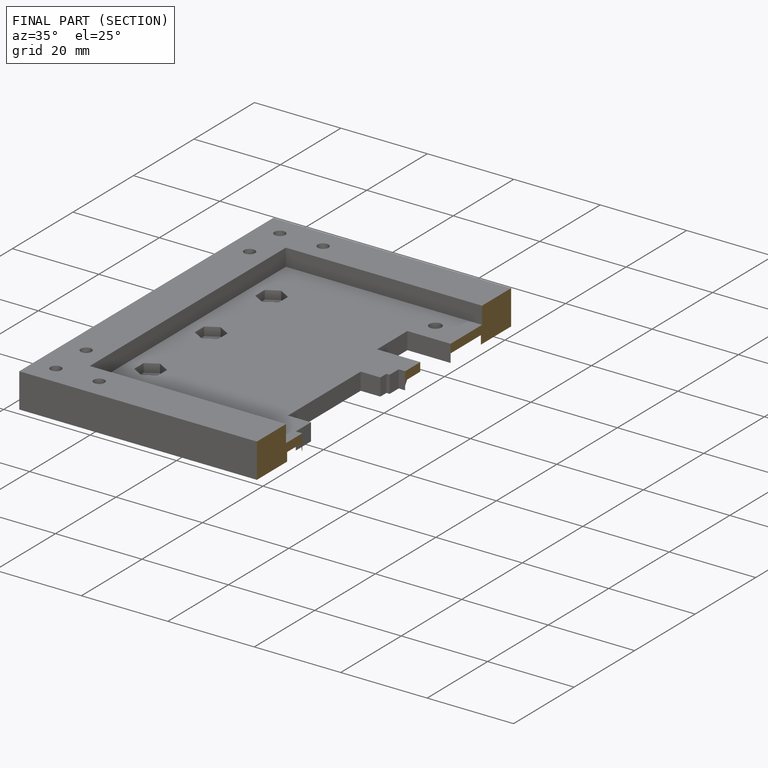
[diagram: finished part — half-section view (interior)]
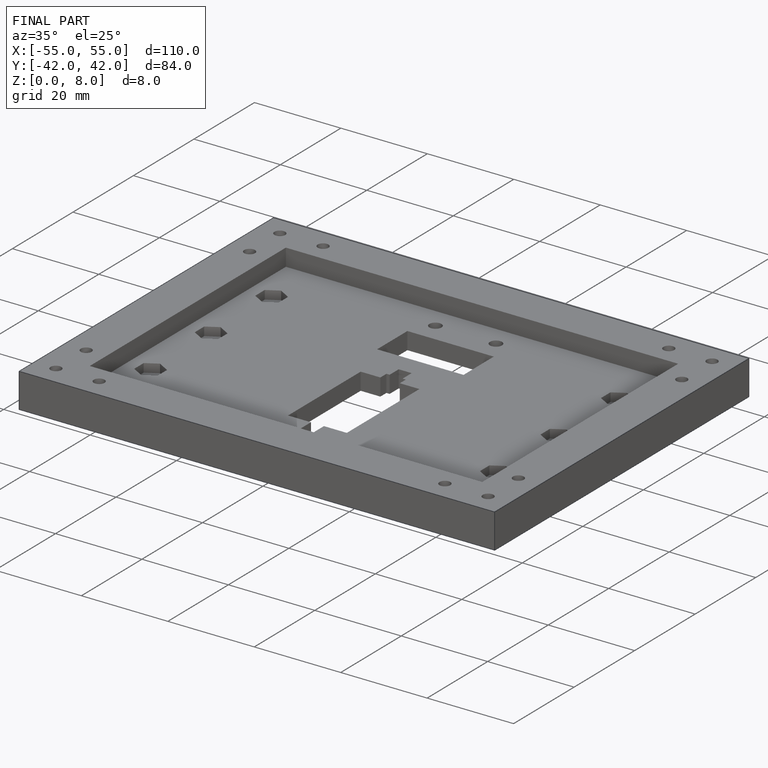
[diagram: finished part — iso view with bounding-box wireframe]
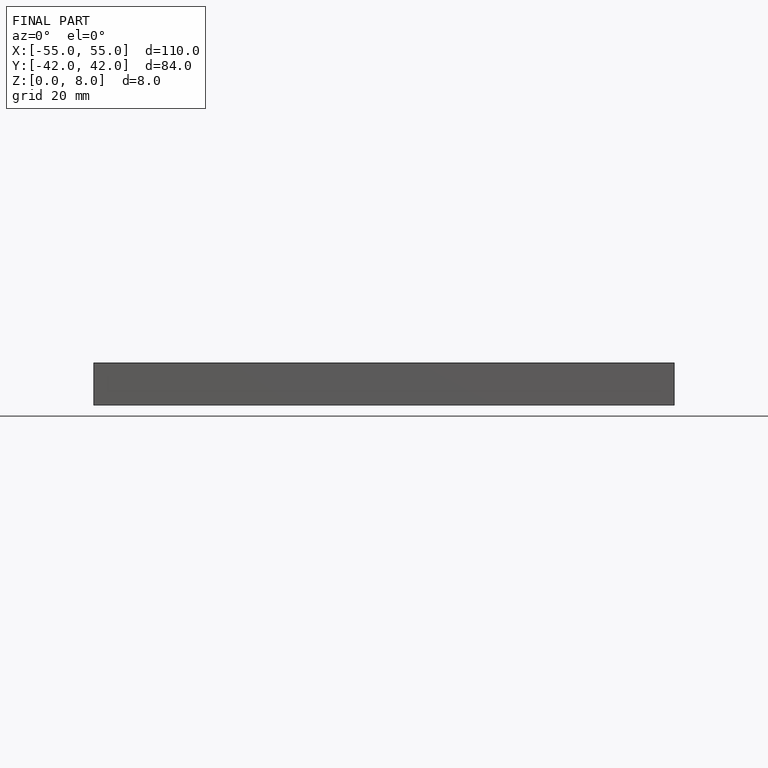
[diagram: finished part — front view with bounding-box wireframe]
